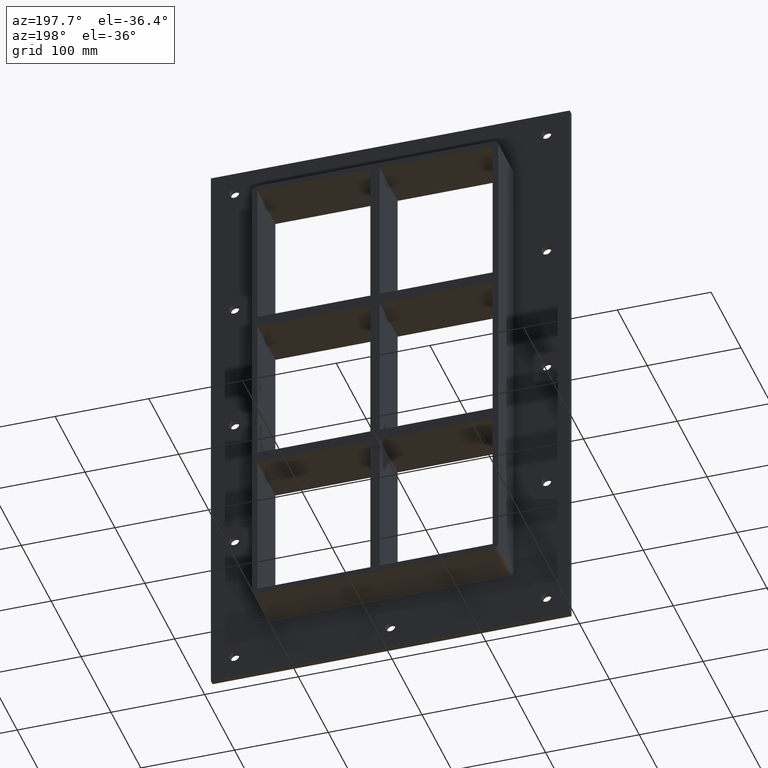
[diagram: clean part render]
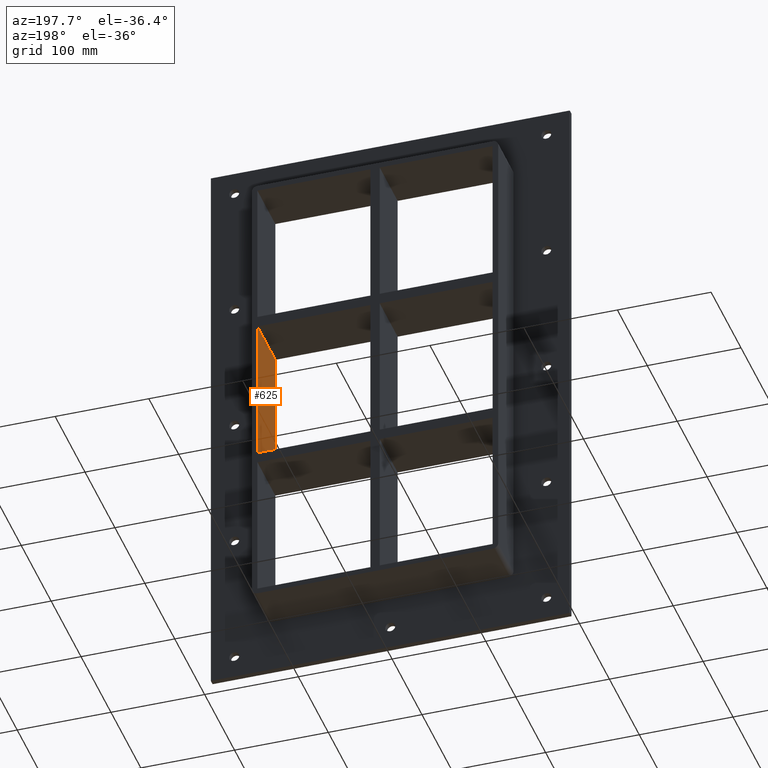
[diagram: same view with one face highlighted and labeled with its STEP entity id]
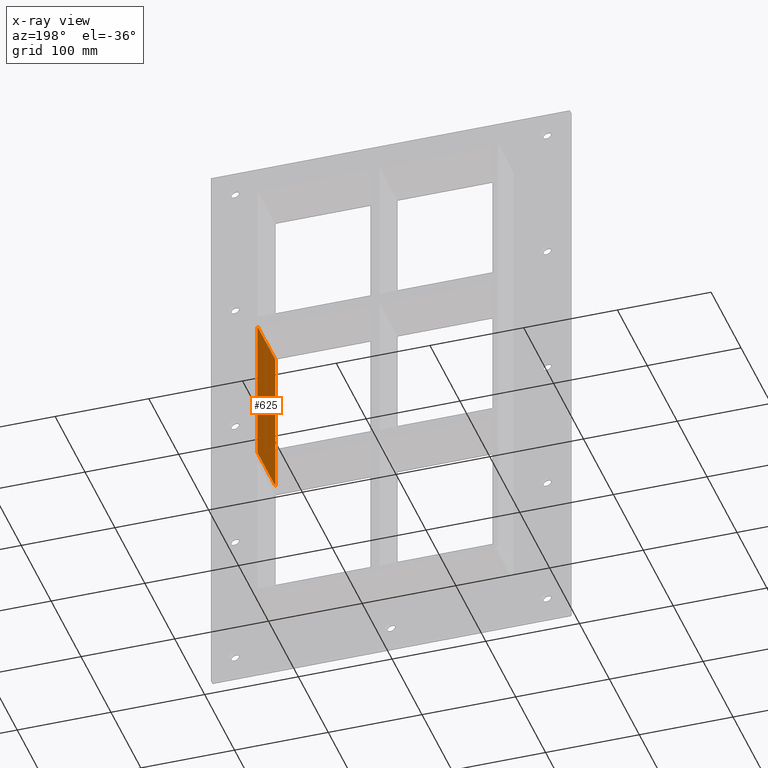
[diagram: x-ray of the same camera — body ghosted, the highlighted face saturated]
A machine part, auxiliary view. The second image highlights one B-rep face of the part: STEP entity #625.
The next image is the same camera in x-ray: the body ghosted, the highlighted face saturated — about 0% of this face is hidden behind the body in this view.
In plain terms, the highlighted planar face has unit normal (1, 0, 0).
Its self-contained STEP definition (entity closure, byte-faithful):
#419=CARTESIAN_POINT('',(125.49999999999271,57.0,79.749999999989825));
#420=VERTEX_POINT('',#419);
#427=CARTESIAN_POINT('',(125.49999999999272,-3.0,79.749999999989825));
#428=VERTEX_POINT('',#427);
#429=CARTESIAN_POINT('',(125.49999999999997,-3.0,79.749999999989825));
#430=DIRECTION('',(0.0,1.0,0.0));
#431=VECTOR('',#430,60.000000000000007);
#432=LINE('',#429,#431);
#433=EDGE_CURVE('',#428,#420,#432,.T.);
#595=CARTESIAN_POINT('',(125.49999999999997,0.0,251.25000000000003));
#596=DIRECTION('',(1.0,0.0,0.0));
#597=DIRECTION('',(0.0,0.0,-1.0));
#598=AXIS2_PLACEMENT_3D('',#595,#596,#597);
#599=PLANE('',#598);
#600=ORIENTED_EDGE('',*,*,#433,.T.);
#601=CARTESIAN_POINT('',(125.50000000000013,57.0,-79.749999999999943));
#602=VERTEX_POINT('',#601);
#603=CARTESIAN_POINT('',(125.49999999999997,57.0,-79.749999999999929));
#604=DIRECTION('',(0.0,0.0,1.0));
#605=VECTOR('',#604,159.49999999998974);
#606=LINE('',#603,#605);
#607=EDGE_CURVE('',#602,#420,#606,.T.);
#608=ORIENTED_EDGE('',*,*,#607,.F.);
#609=CARTESIAN_POINT('',(125.50000000000013,-3.0,-79.749999999999943));
#610=VERTEX_POINT('',#609);
#611=CARTESIAN_POINT('',(125.49999999999997,57.000000000000007,-79.749999999999929));
#612=DIRECTION('',(0.0,-1.0,0.0));
#613=VECTOR('',#612,60.000000000000007);
#614=LINE('',#611,#613);
#615=EDGE_CURVE('',#602,#610,#614,.T.);
#616=ORIENTED_EDGE('',*,*,#615,.T.);
#617=CARTESIAN_POINT('',(125.49999999999997,-3.0,79.749999999989811));
#618=DIRECTION('',(0.0,0.0,-1.0));
#619=VECTOR('',#618,159.49999999998974);
#620=LINE('',#617,#619);
#621=EDGE_CURVE('',#428,#610,#620,.T.);
#622=ORIENTED_EDGE('',*,*,#621,.F.);
#623=EDGE_LOOP('',(#600,#608,#616,#622));
#624=FACE_OUTER_BOUND('',#623,.T.);
#625=ADVANCED_FACE('',(#624),#599,.F.);